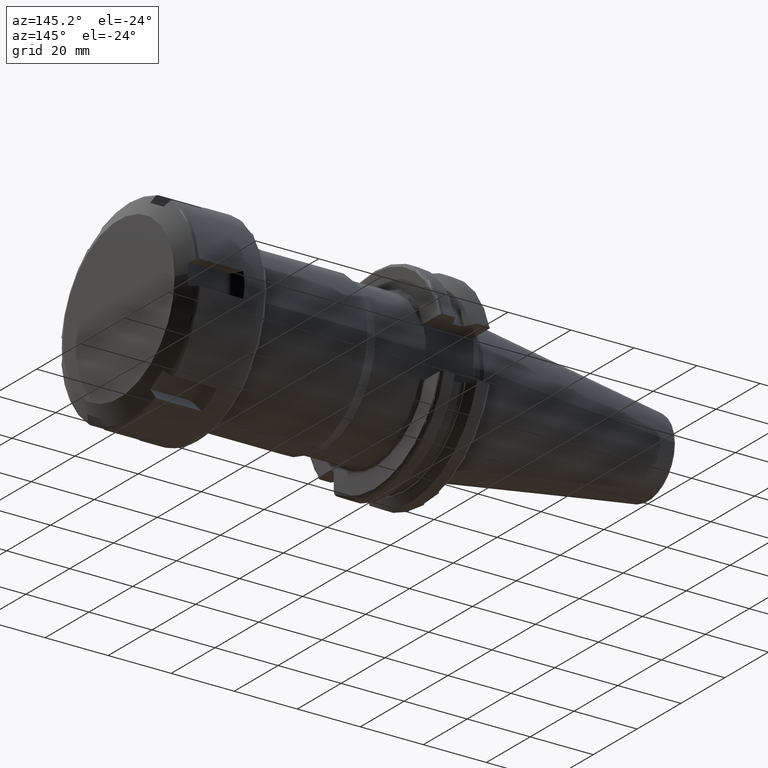
[diagram: clean part render]
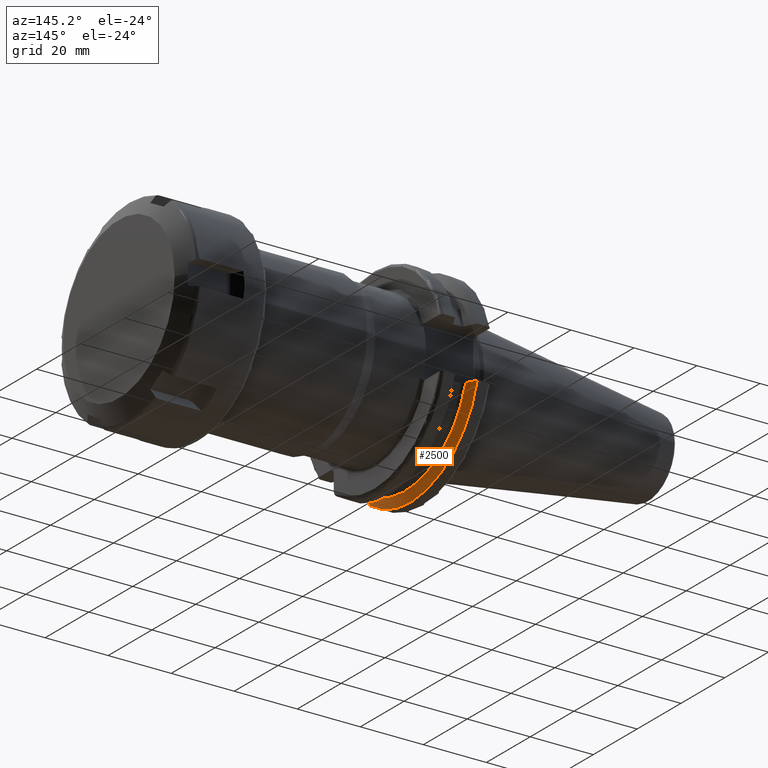
[diagram: same view with one face highlighted and labeled with its STEP entity id]
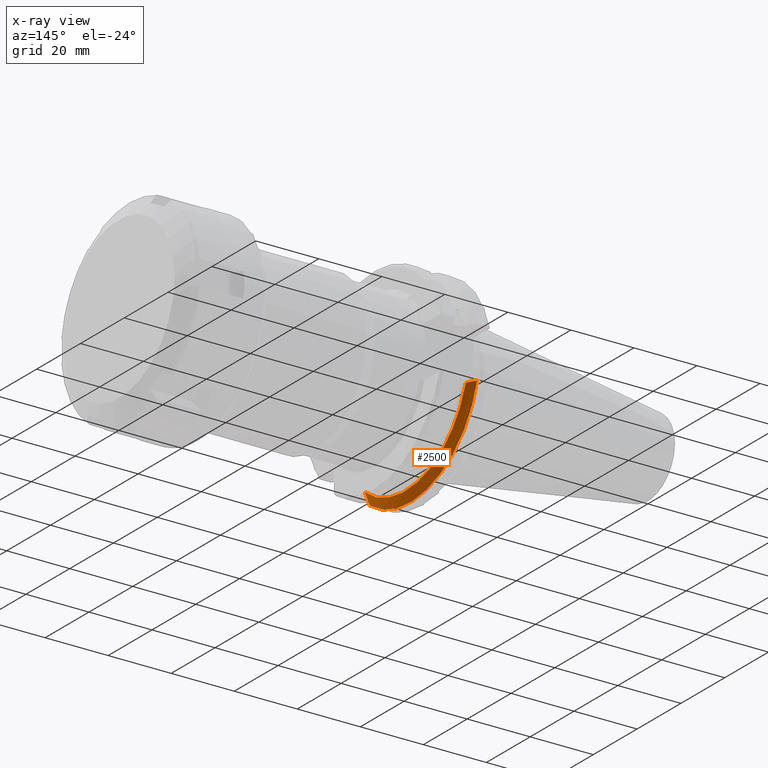
[diagram: x-ray of the same camera — body ghosted, the highlighted face saturated]
A machine part, auxiliary view. The second image highlights one B-rep face of the part: STEP entity #2500.
The next image is the same camera in x-ray: the body ghosted, the highlighted face saturated — about 0% of this face is hidden behind the body in this view.
In plain terms, the highlighted conical surface has half-angle 60 deg.
Its self-contained STEP definition (entity closure, byte-faithful):
#379=CARTESIAN_POINT('',(9.2625E0,0.E0,0.E0));
#380=DIRECTION('',(-1.E0,0.E0,0.E0));
#381=DIRECTION('',(0.E0,9.600957415706E-1,-2.796715341576E-1));
#382=AXIS2_PLACEMENT_3D('',#379,#380,#381);
#729=CARTESIAN_POINT('',(7.645946479578E0,0.E0,0.E0));
#730=DIRECTION('',(1.E0,0.E0,0.E0));
#731=DIRECTION('',(0.E0,-5.777253049980E-1,-8.162312613254E-1));
#732=AXIS2_PLACEMENT_3D('',#729,#730,#731);
#837=CARTESIAN_POINT('',(9.2625E0,2.780681820245E1,-8.1E0));
#838=CARTESIAN_POINT('',(9.089138247115E0,2.811956968242E1,-8.1E0));
#839=CARTESIAN_POINT('',(8.738235514848E0,2.875178670793E1,-8.1E0));
#840=CARTESIAN_POINT('',(8.199445066245E0,2.972014324708E1,-8.1E0));
#841=CARTESIAN_POINT('',(7.831837395590E0,3.037933474515E1,-8.1E0));
#842=CARTESIAN_POINT('',(7.645946479578E0,3.071231684927E1,-8.1E0));
#844=CARTESIAN_POINT('',(9.2625E0,-1.835E1,-2.240773613162E1));
#845=CARTESIAN_POINT('',(9.097869015375E0,-1.835E1,-2.277629848758E1));
#846=CARTESIAN_POINT('',(8.758691179732E0,-1.835E1,-2.352831190146E1));
#847=CARTESIAN_POINT('',(8.220420735022E0,-1.835E1,-2.469989032362E1));
#848=CARTESIAN_POINT('',(7.840855578955E0,-1.835E1,-2.551194640168E1));
#849=CARTESIAN_POINT('',(7.645946479578E0,-1.835E1,-2.592554543785E1));
#1339=CARTESIAN_POINT('',(9.2625E0,2.780681820245E1,-8.1E0));
#1341=VERTEX_POINT('',#1339);
#1355=CARTESIAN_POINT('',(9.2625E0,-1.835E1,-2.240773613162E1));
#1357=VERTEX_POINT('',#1355);
#1399=VERTEX_POINT('',#842);
#1496=VERTEX_POINT('',#849);
#2489=CARTESIAN_POINT('',(8.454223239789E0,0.E0,0.E0));
#2490=DIRECTION('',(-1.E0,0.E0,0.E0));
#2491=DIRECTION('',(0.E0,1.E0,0.E0));
#2492=AXIS2_PLACEMENT_3D('',#2489,#2490,#2491);
#2493=CONICAL_SURFACE('',#2492,3.036252358474E1,6.E1);
#2494=ORIENTED_EDGE('',*,*,#1718,.T.);
#2495=ORIENTED_EDGE('',*,*,#2389,.F.);
#2496=ORIENTED_EDGE('',*,*,#2342,.F.);
#2497=ORIENTED_EDGE('',*,*,#2074,.F.);
#2498=EDGE_LOOP('',(#2494,#2495,#2496,#2497));
#2499=FACE_OUTER_BOUND('',#2498,.F.);
#2500=ADVANCED_FACE('',(#2499),#2493,.T.);
#383=CIRCLE('',#382,2.896254716948E1);
#733=CIRCLE('',#732,3.17625E1);
#843=B_SPLINE_CURVE_WITH_KNOTS('',3,(#837,#838,#839,#840,#841,#842),
.UNSPECIFIED.,.F.,.F.,(4,1,1,4),(0.E0,3.333333333333E-1,6.666666666667E-1,1.E0),
.UNSPECIFIED.);
#850=B_SPLINE_CURVE_WITH_KNOTS('',3,(#844,#845,#846,#847,#848,#849),
.UNSPECIFIED.,.F.,.F.,(4,1,1,4),(0.E0,3.333333333333E-1,6.666666666667E-1,1.E0),
.UNSPECIFIED.);
#1718=EDGE_CURVE('',#1341,#1399,#843,.T.);
#2074=EDGE_CURVE('',#1341,#1357,#383,.T.);
#2342=EDGE_CURVE('',#1357,#1496,#850,.T.);
#2389=EDGE_CURVE('',#1496,#1399,#733,.T.);